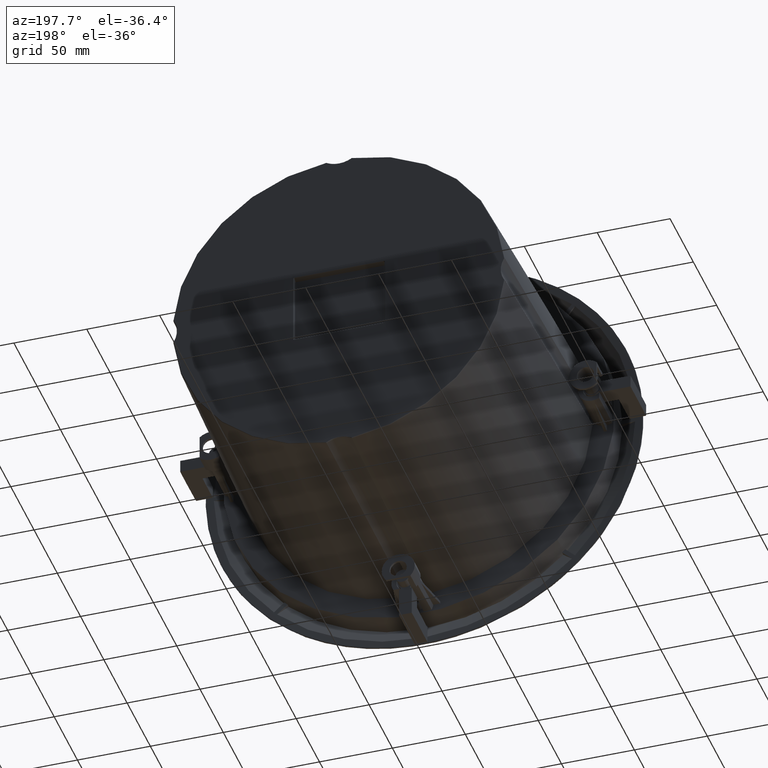
[diagram: clean part render]
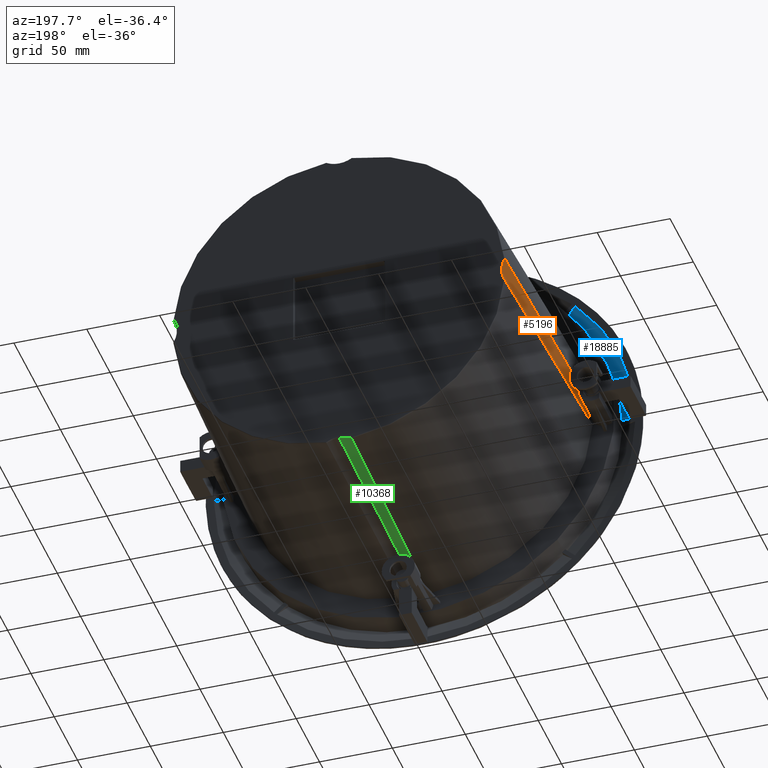
[diagram: same view with three faces highlighted in distinct colors, each labeled with its STEP entity id]
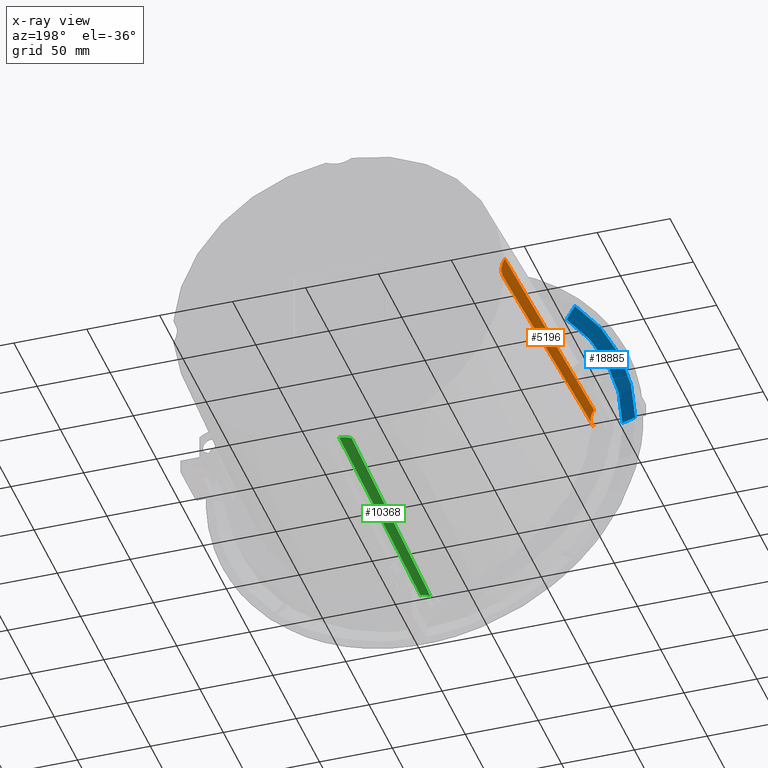
[diagram: x-ray of the same camera — body ghosted, the three highlighted faces saturated]
A machine part, auxiliary view with three faces highlighted in distinct colors.
The next image is the same camera in x-ray (body ghosted, the three faces saturated) — at least one of them is partly hidden behind the body in this view.
Their STEP definitions:

[orange] entity #5196 — the highlighted conical surface has half-angle 1.8 deg.
#421 = CONICAL_SURFACE ( 'NONE', #12376, 16.74959655130431457, 0.03141592649999999654 ) ;
#452 = FACE_OUTER_BOUND ( 'NONE', #12865, .T. ) ;
#672 = CARTESIAN_POINT ( 'NONE',  ( -113.6050356023556986, 171.0157053795211652, 8.533719756954493363 ) ) ;
#1032 = VERTEX_POINT ( 'NONE', #1530 ) ;
#1102 = ORIENTED_EDGE ( 'NONE', *, *, #10933, .T. ) ;
#1402 = CARTESIAN_POINT ( 'NONE',  ( -119.1639173582514246, -3.320610084388151861, -6.972303803075190487 ) ) ;
#1530 = CARTESIAN_POINT ( 'NONE',  ( -113.6050356023557129, 171.0157053795211652, -8.533719756954500468 ) ) ;
#3160 = CARTESIAN_POINT ( 'NONE',  ( -118.8071846904719990, -3.500000000000003109, 6.484955411173385365 ) ) ;
#3252 = CARTESIAN_POINT ( 'NONE',  ( -118.9308620117015778, -3.487215643247048469, 6.658289661331013853 ) ) ;
#4270 = CARTESIAN_POINT ( 'NONE',  ( -119.0528928107666928, -3.430436161861115441, -6.824336624747336266 ) ) ;
#4343 = B_SPLINE_CURVE_WITH_KNOTS ( 'NONE', 3,
 ( #3160, #12846, #3252, #9823, #19350, #5013 ),
 .UNSPECIFIED., .F., .F.,
 ( 4, 2, 4 ),
 ( 0.0000000000000000000, 0.0003180067979155953221, 0.0006360135958311906442 ),
 .UNSPECIFIED. ) ;
#4594 = CARTESIAN_POINT ( 'NONE',  ( -119.1639173582514246, -3.320610084388142980, 6.972303803075192263 ) ) ;
#4695 = ORIENTED_EDGE ( 'NONE', *, *, #20595, .T. ) ;
#5013 = CARTESIAN_POINT ( 'NONE',  ( -119.1639173582514246, -3.320610084388142980, 6.972303803075192263 ) ) ;
#5196 = ADVANCED_FACE ( 'NONE', ( #452 ), #421, .F. ) ;
#5916 = CARTESIAN_POINT ( 'NONE',  ( -115.4619925585175224, 112.9031079516616529, -8.084850249745461070 ) ) ;
#6106 = CARTESIAN_POINT ( 'NONE',  ( -128.0000000000000284, -3.500000000000003109, 0.0000000000000000000 ) ) ;
#6125 = CARTESIAN_POINT ( 'NONE',  ( -118.8691794096955334, -3.499999999999999556, -6.572836663680703850 ) ) ;
#6212 = B_SPLINE_CURVE_WITH_KNOTS ( 'NONE', 3,
 ( #4594, #6337, #15839, #14561 ),
 .UNSPECIFIED., .F., .F.,
 ( 4, 4 ),
 ( 0.0001794902888198973917, 0.1746114435296580447 ),
 .UNSPECIFIED. ) ;
#6264 = CARTESIAN_POINT ( 'NONE',  ( -128.0000000000000284, 171.0157053795210231, 0.0000000000000000000 ) ) ;
#6337 = CARTESIAN_POINT ( 'NONE',  ( -117.3168128145822635, 54.79086030599737711, 7.579588798186970955 ) ) ;
#6347 = CARTESIAN_POINT ( 'NONE',  ( -117.3168126532998059, 54.79086538007985752, -7.579588851212891498 ) ) ;
#6560 = B_SPLINE_CURVE_WITH_KNOTS ( 'NONE', 3,
 ( #20556, #5916, #6347, #16783 ),
 .UNSPECIFIED., .F., .F.,
 ( 4, 4 ),
 ( 0.0000000000000000000, 0.1744319598668781501 ),
 .UNSPECIFIED. ) ;
#6757 = EDGE_CURVE ( 'NONE', #14667, #7634, #6212, .T. ) ;
#7183 = VERTEX_POINT ( 'NONE', #11440 ) ;
#7186 = DIRECTION ( 'NONE',  ( -0.0000000000000000000, 1.000000000000000000, 0.0000000000000000000 ) ) ;
#7634 = VERTEX_POINT ( 'NONE', #672 ) ;
#7657 = VERTEX_POINT ( 'NONE', #15111 ) ;
#7722 = CARTESIAN_POINT ( 'NONE',  ( -119.1125139647570279, -3.386808557046430135, -6.903801261260892552 ) ) ;
#7777 = EDGE_CURVE ( 'NONE', #1032, #7183, #6560, .T. ) ;
#7804 = DIRECTION ( 'NONE',  ( -0.0000000000000000000, 1.000000000000000000, 0.0000000000000000000 ) ) ;
#8341 = CIRCLE ( 'NONE', #12810, 11.25000000000000000 ) ;
#8546 = DIRECTION ( 'NONE',  ( -1.658596292485244996E-15, 0.0000000000000000000, -1.000000000000000000 ) ) ;
#8910 = EDGE_CURVE ( 'NONE', #9630, #7657, #8341, .T. ) ;
#9630 = VERTEX_POINT ( 'NONE', #17216 ) ;
#9823 = CARTESIAN_POINT ( 'NONE',  ( -119.0524892539859962, -3.430665922955575375, 6.823791240844032657 ) ) ;
#10398 = ORIENTED_EDGE ( 'NONE', *, *, #6757, .T. ) ;
#10933 = EDGE_CURVE ( 'NONE', #7183, #7657, #13590, .T. ) ;
#11129 = CIRCLE ( 'NONE', #16613, 16.73437697972897809 ) ;
#11349 = EDGE_CURVE ( 'NONE', #9630, #14667, #4343, .T. ) ;
#11440 = CARTESIAN_POINT ( 'NONE',  ( -119.1639173582514246, -3.320610084388151861, -6.972303803075190487 ) ) ;
#12001 = CARTESIAN_POINT ( 'NONE',  ( -128.0000000000000284, 171.5000000001974740, 0.0000000000000000000 ) ) ;
#12376 = AXIS2_PLACEMENT_3D ( 'NONE', #12001, #7186, #20213 ) ;
#12532 = DIRECTION ( 'NONE',  ( 0.0000000000000000000, 0.0000000000000000000, 1.000000000000000000 ) ) ;
#12654 = CARTESIAN_POINT ( 'NONE',  ( -118.8071846904719990, -3.500000000000003109, -6.484955411173391582 ) ) ;
#12810 = AXIS2_PLACEMENT_3D ( 'NONE', #6106, #7804, #12532 ) ;
#12846 = CARTESIAN_POINT ( 'NONE',  ( -118.8691951537236662, -3.499999999999998668, 6.572858981789855726 ) ) ;
#12865 = EDGE_LOOP ( 'NONE', ( #13889, #1102, #19674, #20627, #10398, #4695 ) ) ;
#13281 = DIRECTION ( 'NONE',  ( -0.0000000000000000000, 1.000000000000000000, -0.0000000000000000000 ) ) ;
#13590 = B_SPLINE_CURVE_WITH_KNOTS ( 'NONE', 3,
 ( #1402, #7722, #4270, #20993, #6125, #12654 ),
 .UNSPECIFIED., .F., .F.,
 ( 4, 2, 4 ),
 ( 0.0000000000000000000, 0.0003199214661654319145, 0.0006398429323308638290 ),
 .UNSPECIFIED. ) ;
#13889 = ORIENTED_EDGE ( 'NONE', *, *, #7777, .T. ) ;
#14561 = CARTESIAN_POINT ( 'NONE',  ( -113.6050356023556986, 171.0157053795211652, 8.533719756954493363 ) ) ;
#14667 = VERTEX_POINT ( 'NONE', #21154 ) ;
#15111 = CARTESIAN_POINT ( 'NONE',  ( -118.8071846904719990, -3.500000000000003109, -6.484955411173391582 ) ) ;
#15839 = CARTESIAN_POINT ( 'NONE',  ( -115.4619924656580849, 112.9031108576543829, 8.084850272191744125 ) ) ;
#16613 = AXIS2_PLACEMENT_3D ( 'NONE', #6264, #13281, #8546 ) ;
#16783 = CARTESIAN_POINT ( 'NONE',  ( -119.1639173582514246, -3.320610084388151861, -6.972303803075190487 ) ) ;
#17216 = CARTESIAN_POINT ( 'NONE',  ( -118.8071846904719990, -3.500000000000003109, 6.484955411173385365 ) ) ;
#19350 = CARTESIAN_POINT ( 'NONE',  ( -119.1124994782633166, -3.386827213086309740, 6.903781955888693034 ) ) ;
#19674 = ORIENTED_EDGE ( 'NONE', *, *, #8910, .F. ) ;
#20213 = DIRECTION ( 'NONE',  ( 0.0000000000000000000, 0.0000000000000000000, 1.000000000000000000 ) ) ;
#20556 = CARTESIAN_POINT ( 'NONE',  ( -113.6050356023557129, 171.0157053795211652, -8.533719756954500468 ) ) ;
#20595 = EDGE_CURVE ( 'NONE', #7634, #1032, #11129, .T. ) ;
#20627 = ORIENTED_EDGE ( 'NONE', *, *, #11349, .T. ) ;
#20993 = CARTESIAN_POINT ( 'NONE',  ( -118.9309194420048499, -3.487230912769621050, -6.658371541268803817 ) ) ;
#21154 = CARTESIAN_POINT ( 'NONE',  ( -119.1639173582514246, -3.320610084388142980, 6.972303803075192263 ) ) ;

[blue] entity #18885 — the highlighted face is a freeform B-spline surface patch.
#173 = VERTEX_POINT ( 'NONE', #11904 ) ;
#668 = B_SPLINE_CURVE_WITH_KNOTS ( 'NONE', 3,
 ( #5546, #3786, #8632, #16978 ),
 .UNSPECIFIED., .F., .F.,
 ( 4, 4 ),
 ( 5.766488029646889747E-17, 0.01034830993161983508 ),
 .UNSPECIFIED. ) ;
#1066 =( BOUNDED_SURFACE ( )  B_SPLINE_SURFACE ( 3, 3, ( 
 ( #13640, #3745, #5717, #10522 ),
 ( #10423, #18548, #2062, #12239 ),
 ( #8593, #15441, #5399, #2170 ),
 ( #3858, #2268, #8813, #15344 ) ),
 .UNSPECIFIED., .F., .F., .T. ) 
 B_SPLINE_SURFACE_WITH_KNOTS ( ( 4, 4 ),
 ( 4, 4 ),
 ( 0.0000000000000000000, 1.000000000000000000 ),
 ( 0.0000000000000000000, 1.000000000000000000 ),
 .UNSPECIFIED. ) 
 GEOMETRIC_REPRESENTATION_ITEM ( )  RATIONAL_B_SPLINE_SURFACE ( (
 ( 1.000000000000000000, 0.9951265495801747685, 0.9951265495801747685, 1.000000000000000000),
 ( 0.9988538759846783410, 0.9939860111434167811, 0.9939860111434167811, 0.9988538759846783410),
 ( 0.9988538759846783410, 0.9939860111434167811, 0.9939860111434167811, 0.9988538759846783410),
 ( 1.000000000000000000, 0.9951265495801747685, 0.9951265495801747685, 1.000000000000000000) ) ) 
 REPRESENTATION_ITEM ( '' )  SURFACE ( )  );
#1965 = ORIENTED_EDGE ( 'NONE', *, *, #2295, .F. ) ;
#2062 = CARTESIAN_POINT ( 'NONE',  ( -127.9101114913856918, -18.37339307101693464, 31.23573953276097370 ) ) ;
#2170 = CARTESIAN_POINT ( 'NONE',  ( -161.8330133702389730, -5.612774676387496164, 20.32695189449184880 ) ) ;
#2268 = CARTESIAN_POINT ( 'NONE',  ( -126.3481766497151426, -12.15296015757278525, 78.39527066856865645 ) ) ;
#2295 = EDGE_CURVE ( 'NONE', #173, #9216, #17119, .T. ) ;
#2356 = VERTEX_POINT ( 'NONE', #14042 ) ;
#3745 = CARTESIAN_POINT ( 'NONE',  ( -92.69694685425956493, -26.28779202823001526, 43.08328882933950155 ) ) ;
#3786 = CARTESIAN_POINT ( 'NONE',  ( -141.2395197558869029, -13.47554618478873856, 1.499999999999791500 ) ) ;
#3858 = CARTESIAN_POINT ( 'NONE',  ( -103.0094285152687945, -12.22588053483564252, 101.7340188030148340 ) ) ;
#4167 = CIRCLE ( 'NONE', #19233, 134.7039104068993254 ) ;
#5399 = CARTESIAN_POINT ( 'NONE',  ( -138.8723634809634859, -13.70325359359133799, 43.28760178376722934 ) ) ;
#5546 = CARTESIAN_POINT ( 'NONE',  ( -144.4915754513660318, -12.32470072771710790, 1.500000000000019318 ) ) ;
#5699 = CARTESIAN_POINT ( 'NONE',  ( -98.62313902379592889, -14.58738001930154660, 96.50181868023612708 ) ) ;
#5717 = CARTESIAN_POINT ( 'NONE',  ( -116.6610275123935878, -22.09132819819453175, 19.11920817120564209 ) ) ;
#5845 = DIRECTION ( 'NONE',  ( 5.715123890295924756E-16, 1.000000000000000000, -9.577690591101021377E-17 ) ) ;
#6583 = CARTESIAN_POINT ( 'NONE',  ( -103.2316329977689691, -12.32470072771706171, 101.1103126542087409 ) ) ;
#8593 = CARTESIAN_POINT ( 'NONE',  ( -91.72653521693077039, -17.88945259357987183, 90.43343004779963223 ) ) ;
#8632 = CARTESIAN_POINT ( 'NONE',  ( -137.9741807712593982, -14.58738001930159811, 1.500000000000718758 ) ) ;
#8813 = CARTESIAN_POINT ( 'NONE',  ( -149.5100911803251336, -8.096967442947734739, 55.23335613795872234 ) ) ;
#9216 = VERTEX_POINT ( 'NONE', #6583 ) ;
#9317 = CARTESIAN_POINT ( 'NONE',  ( -96.30480298100739844, -15.66020223124918509, 94.18348263744954352 ) ) ;
#9891 = DIRECTION ( 'NONE',  ( 0.7071067811865477948, 2.521062564041678776E-16, 0.7071067811865472397 ) ) ;
#10423 = CARTESIAN_POINT ( 'NONE',  ( -80.22684841716046833, -22.60731228608763743, 78.91900260698589875 ) ) ;
#10522 = CARTESIAN_POINT ( 'NONE',  ( -140.0917870151572231, -13.83520014061175374, -4.311551331557819999 ) ) ;
#10711 = VERTEX_POINT ( 'NONE', #12896 ) ;
#11904 = CARTESIAN_POINT ( 'NONE',  ( -96.30480298100739844, -15.66020223124918509, 94.18348263744954352 ) ) ;
#12239 = CARTESIAN_POINT ( 'NONE',  ( -151.1324993322363071, -10.19068743596049131, 8.013351691910502339 ) ) ;
#12342 = EDGE_CURVE ( 'NONE', #2356, #10711, #668, .T. ) ;
#12896 = CARTESIAN_POINT ( 'NONE',  ( -134.6955584974109001, -15.66020223124873390, 1.499999999998562261 ) ) ;
#13640 = CARTESIAN_POINT ( 'NONE',  ( -68.54990831758752279, -26.36323785547539700, 67.23032736601142290 ) ) ;
#13687 = EDGE_CURVE ( 'NONE', #10711, #173, #4167, .T. ) ;
#13970 = DIRECTION ( 'NONE',  ( -0.7071067811865427988, -2.575609677160429810E-16, -0.7071067811865522357 ) ) ;
#14042 = CARTESIAN_POINT ( 'NONE',  ( -144.4915754513660318, -12.32470072771710790, 1.500000000000019318 ) ) ;
#15223 = EDGE_CURVE ( 'NONE', #2356, #9216, #21115, .T. ) ;
#15344 = CARTESIAN_POINT ( 'NONE',  ( -172.1565367808195504, -0.1172024291542037716, 32.58691053746452582 ) ) ;
#15352 = EDGE_LOOP ( 'NONE', ( #1965, #19939, #16926, #16107 ) ) ;
#15441 = CARTESIAN_POINT ( 'NONE',  ( -115.3890928748666056, -17.81552049484514910, 66.77087238986398177 ) ) ;
#15526 = CARTESIAN_POINT ( 'NONE',  ( -103.2316329977689691, -12.32470072771706171, 101.1103126542087409 ) ) ;
#15671 = CARTESIAN_POINT ( 'NONE',  ( -4.880562738709880536E-14, -15.66020223124185762, -2.058148732554759069E-13 ) ) ;
#16107 = ORIENTED_EDGE ( 'NONE', *, *, #15223, .T. ) ;
#16336 = DIRECTION ( 'NONE',  ( 5.715123890295924756E-16, 1.000000000000000000, -9.577690591101021377E-17 ) ) ;
#16926 = ORIENTED_EDGE ( 'NONE', *, *, #12342, .F. ) ;
#16978 = CARTESIAN_POINT ( 'NONE',  ( -134.6955584974109001, -15.66020223124873390, 1.499999999998562261 ) ) ;
#17119 = B_SPLINE_CURVE_WITH_KNOTS ( 'NONE', 3,
 ( #9317, #5699, #20236, #15526 ),
 .UNSPECIFIED., .F., .F.,
 ( 4, 4 ),
 ( 0.0000000000000000000, 0.01034830993162035896 ),
 .UNSPECIFIED. ) ;
#17682 = AXIS2_PLACEMENT_3D ( 'NONE', #18034, #16336, #9891 ) ;
#18034 = CARTESIAN_POINT ( 'NONE',  ( -1.271060097592949851E-13, -12.32470072771656078, 2.990323610908267177E-14 ) ) ;
#18548 = CARTESIAN_POINT ( 'NONE',  ( -104.1591453638482392, -22.53253740475869904, 54.98670566029829843 ) ) ;
#18885 = ADVANCED_FACE ( 'NONE', ( #20146 ), #1066, .F. ) ;
#19233 = AXIS2_PLACEMENT_3D ( 'NONE', #15671, #5845, #13970 ) ;
#19939 = ORIENTED_EDGE ( 'NONE', *, *, #13687, .F. ) ;
#20146 = FACE_OUTER_BOUND ( 'NONE', #15352, .T. ) ;
#20236 = CARTESIAN_POINT ( 'NONE',  ( -100.9320823626990347, -13.47554618478881139, 98.81076201913870705 ) ) ;
#21115 = CIRCLE ( 'NONE', #17682, 144.4993611626636891 ) ;

[green] entity #10368 — the highlighted conical surface has half-angle 1.8 deg.
#42 = EDGE_CURVE ( 'NONE', #20453, #19943, #2348, .T. ) ;
#513 = AXIS2_PLACEMENT_3D ( 'NONE', #2910, #9471, #6594 ) ;
#1486 = ORIENTED_EDGE ( 'NONE', *, *, #42, .F. ) ;
#1526 = CARTESIAN_POINT ( 'NONE',  ( -1.551721756192795927E-27, 171.0157053795210231, -111.2656230202710219 ) ) ;
#2348 = CIRCLE ( 'NONE', #4404, 11.25000000000001066 ) ;
#2359 = DIRECTION ( 'NONE',  ( 0.0000000000000000000, 0.0000000000000000000, 1.000000000000000000 ) ) ;
#2910 = CARTESIAN_POINT ( 'NONE',  ( -1.551721756192795927E-27, 171.0157053795210231, -128.0000000000000000 ) ) ;
#3054 = CARTESIAN_POINT ( 'NONE',  ( -8.533719756954502245, 171.0157053795211652, -113.6050356023556844 ) ) ;
#3284 = EDGE_LOOP ( 'NONE', ( #12386, #1486, #4049, #5377, #18206 ) ) ;
#3533 = CARTESIAN_POINT ( 'NONE',  ( -6.823791240844049533, -3.430665922955589586, -119.0524892539860247 ) ) ;
#4049 = ORIENTED_EDGE ( 'NONE', *, *, #21015, .T. ) ;
#4378 = CARTESIAN_POINT ( 'NONE',  ( -1.551721756192795927E-27, -3.500000000000003109, -116.7499999999999858 ) ) ;
#4404 = AXIS2_PLACEMENT_3D ( 'NONE', #20563, #7516, #2359 ) ;
#4944 = CARTESIAN_POINT ( 'NONE',  ( -8.533719756954502245, 171.0157053795211652, -113.6050356023556844 ) ) ;
#5053 = VERTEX_POINT ( 'NONE', #1526 ) ;
#5377 = ORIENTED_EDGE ( 'NONE', *, *, #5952, .T. ) ;
#5952 = EDGE_CURVE ( 'NONE', #17107, #16460, #13863, .T. ) ;
#6067 = LINE ( 'NONE', #12478, #17558 ) ;
#6319 = CIRCLE ( 'NONE', #513, 16.73437697972896032 ) ;
#6594 = DIRECTION ( 'NONE',  ( 0.0000000000000000000, 0.0000000000000000000, -1.000000000000000000 ) ) ;
#6650 = DIRECTION ( 'NONE',  ( -0.0000000000000000000, 1.000000000000000000, 0.0000000000000000000 ) ) ;
#7516 = DIRECTION ( 'NONE',  ( -0.0000000000000000000, 1.000000000000000000, 0.0000000000000000000 ) ) ;
#9471 = DIRECTION ( 'NONE',  ( -0.0000000000000000000, 1.000000000000000000, -0.0000000000000000000 ) ) ;
#9747 = CARTESIAN_POINT ( 'NONE',  ( -1.551721756192795927E-27, 171.5000000001974740, -128.0000000000000000 ) ) ;
#10368 = ADVANCED_FACE ( 'NONE', ( #11253 ), #20735, .F. ) ;
#11253 = FACE_OUTER_BOUND ( 'NONE', #3284, .T. ) ;
#11378 = CARTESIAN_POINT ( 'NONE',  ( -6.972303803075211803, -3.320610084388142980, -119.1639173582513962 ) ) ;
#12386 = ORIENTED_EDGE ( 'NONE', *, *, #14502, .F. ) ;
#12478 = CARTESIAN_POINT ( 'NONE',  ( -1.551721756192795927E-27, 171.5000000001974740, -111.2504034486956925 ) ) ;
#12546 = AXIS2_PLACEMENT_3D ( 'NONE', #9747, #6650, #17991 ) ;
#13076 = CARTESIAN_POINT ( 'NONE',  ( -8.084850272191753007, 112.9031108576543687, -115.4619924656580565 ) ) ;
#13130 = CARTESIAN_POINT ( 'NONE',  ( -6.903781955888709909, -3.386827213086307520, -119.1124994782632882 ) ) ;
#13334 = CARTESIAN_POINT ( 'NONE',  ( -6.572858981789863719, -3.500000000000003109, -118.8691951537236093 ) ) ;
#13863 = B_SPLINE_CURVE_WITH_KNOTS ( 'NONE', 3,
 ( #11378, #17897, #13076, #4944 ),
 .UNSPECIFIED., .F., .F.,
 ( 4, 4 ),
 ( 0.0001794902888198964973, 0.1746114435296580447 ),
 .UNSPECIFIED. ) ;
#14502 = EDGE_CURVE ( 'NONE', #19943, #5053, #6067, .T. ) ;
#14600 = EDGE_CURVE ( 'NONE', #16460, #5053, #6319, .T. ) ;
#14973 = B_SPLINE_CURVE_WITH_KNOTS ( 'NONE', 3,
 ( #16239, #13334, #18245, #3533, #13130, #19433 ),
 .UNSPECIFIED., .F., .F.,
 ( 4, 2, 4 ),
 ( 2.637977740025101358E-18, 0.0003180067979156019900, 0.0006360135958312012694 ),
 .UNSPECIFIED. ) ;
#15367 = DIRECTION ( 'NONE',  ( 0.0000000000000000000, 0.9995065603668591425, 0.03141075904224800708 ) ) ;
#15879 = CARTESIAN_POINT ( 'NONE',  ( -6.484955411173396023, -3.500000000000003109, -118.8071846904719706 ) ) ;
#16239 = CARTESIAN_POINT ( 'NONE',  ( -6.484955411173396023, -3.500000000000003109, -118.8071846904719706 ) ) ;
#16460 = VERTEX_POINT ( 'NONE', #3054 ) ;
#17107 = VERTEX_POINT ( 'NONE', #18843 ) ;
#17558 = VECTOR ( 'NONE', #15367, 1000.000000000000000 ) ;
#17897 = CARTESIAN_POINT ( 'NONE',  ( -7.579588798187021581, 54.79086030599737711, -117.3168128145822635 ) ) ;
#17991 = DIRECTION ( 'NONE',  ( 0.0000000000000000000, 0.0000000000000000000, 1.000000000000000000 ) ) ;
#18206 = ORIENTED_EDGE ( 'NONE', *, *, #14600, .T. ) ;
#18245 = CARTESIAN_POINT ( 'NONE',  ( -6.658289661331028952, -3.487215643247057795, -118.9308620117015920 ) ) ;
#18843 = CARTESIAN_POINT ( 'NONE',  ( -6.972303803075211803, -3.320610084388142980, -119.1639173582513962 ) ) ;
#19433 = CARTESIAN_POINT ( 'NONE',  ( -6.972303803075211803, -3.320610084388142980, -119.1639173582513962 ) ) ;
#19943 = VERTEX_POINT ( 'NONE', #4378 ) ;
#20453 = VERTEX_POINT ( 'NONE', #15879 ) ;
#20563 = CARTESIAN_POINT ( 'NONE',  ( -1.551721756192795927E-27, -3.500000000000003109, -128.0000000000000000 ) ) ;
#20735 = CONICAL_SURFACE ( 'NONE', #12546, 16.74959655130431457, 0.03141592649999994102 ) ;
#21015 = EDGE_CURVE ( 'NONE', #20453, #17107, #14973, .T. ) ;